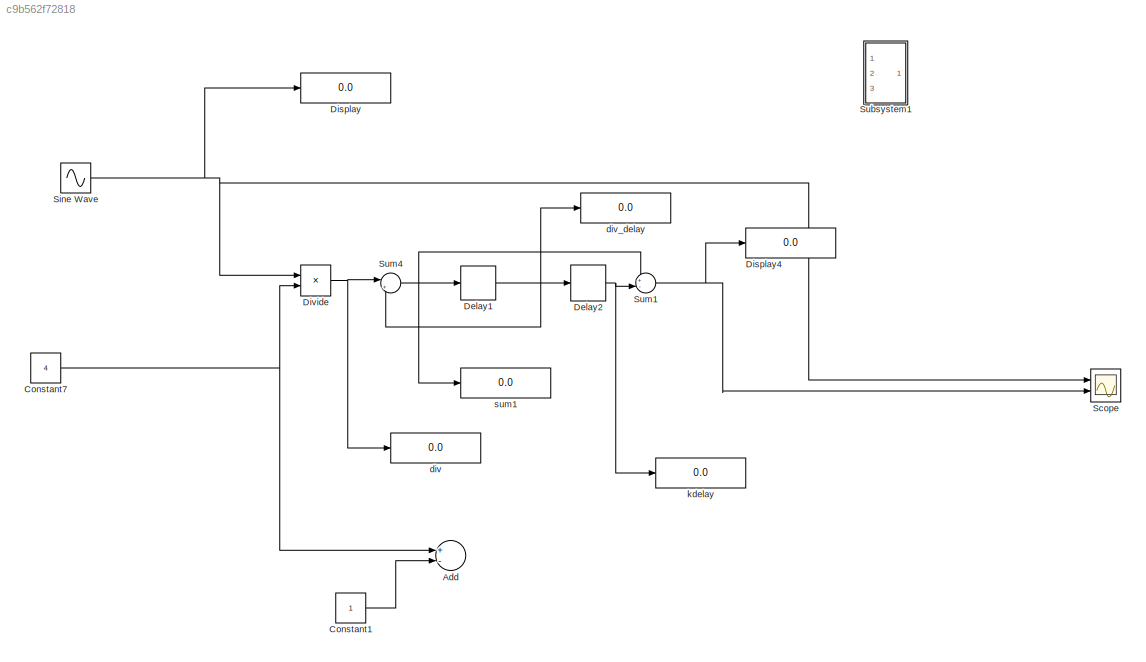
MODEL slx_c9b562f72818
KIND model
BLOCK [Sum] Add
  InputSameDT = off
  Inputs = +-
  OutDataTypeStr = Inherit: Inherit via internal rule
  Ports = [2, 1]
  SaturateOnIntegerOverflow = off
BLOCK [Constant] Constant1
BLOCK [Constant] Constant7
  Value = 4
BLOCK [Delay] Delay1
  DelayLength = 1
  InitialCondition = 0
  InputPortMap = u0
  Ports = [1, 1]
BLOCK [Delay] Delay2
  DelayLength = 3
  InitialCondition = 0
  InputPortMap = u0
  Ports = [1, 1]
BLOCK [Display] Display
  Decimation = 1
  Ports = [1]
BLOCK [Display] Display4
  Decimation = 1
  Ports = [1]
BLOCK [Product] Divide
  InputSameDT = off
  Inputs = */
  OutDataTypeStr = Inherit: Inherit via internal rule
  Ports = [2, 1]
  RndMeth = Floor
  SaturateOnIntegerOverflow = off
BLOCK [Scope] Scope
  Floating = off
  LimitDataPoints = off
  NumInputPorts = 2
  Ports = [2]
  ShowLegends = off
  TimeRange = 0.0001
  YMax = 1~1
  YMin = -1~-1
BLOCK [Sin] Sine Wave
  Frequency = 1E6*2*pi
  Ports = [0, 1]
  SampleTime = 1/250E6
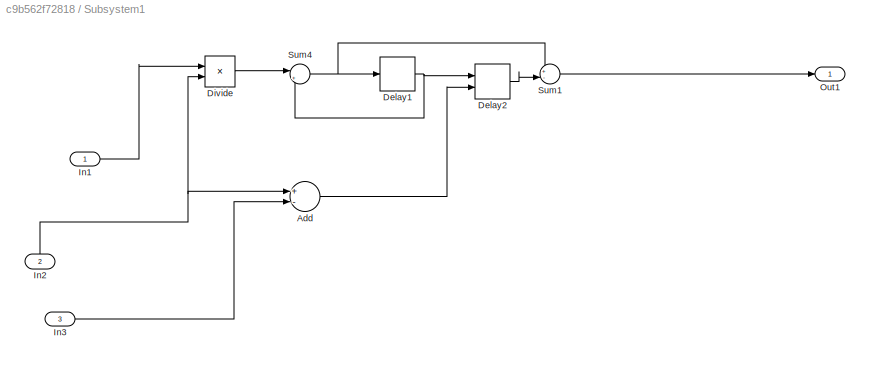
BLOCK [SubSystem] Subsystem1
  Commented = on
  Ports = [3, 1]
  RequestExecContextInheritance = off
BLOCK [Sum] Subsystem1/Add
  InputSameDT = off
  Inputs = +-
  OutDataTypeStr = Inherit: Inherit via internal rule
  Ports = [2, 1]
  SaturateOnIntegerOverflow = off
BLOCK [Delay] Subsystem1/Delay1
  DelayLength = 1
  InitialCondition = 0
  InputPortMap = u0
  Ports = [1, 1]
BLOCK [Delay] Subsystem1/Delay2
  DelayLength = filtk-1
  DelayLengthSource = Input port
  InitialCondition = 0
  InputPortMap = u0,p1
  Ports = [2, 1]
BLOCK [Product] Subsystem1/Divide
  InputSameDT = off
  Inputs = */
  OutDataTypeStr = Inherit: Inherit via internal rule
  Ports = [2, 1]
  RndMeth = Floor
  SaturateOnIntegerOverflow = off
BLOCK [Inport] Subsystem1/In1
  IconDisplay = Port number
BLOCK [Inport] Subsystem1/In2
  IconDisplay = Port number
  Port = 2
BLOCK [Inport] Subsystem1/In3
  IconDisplay = Port number
  Port = 3
BLOCK [Outport] Subsystem1/Out1
  IconDisplay = Port number
BLOCK [Sum] Subsystem1/Sum1
  IconShape = round
  InputSameDT = off
  Inputs = +-|
  OutDataTypeStr = Inherit: Inherit via internal rule
  Ports = [2, 1]
  SaturateOnIntegerOverflow = off
BLOCK [Sum] Subsystem1/Sum4
  IconShape = round
  InputSameDT = off
  Inputs = |++
  OutDataTypeStr = Inherit: Inherit via internal rule
  Ports = [2, 1]
  SaturateOnIntegerOverflow = off
BLOCK [Sum] Sum1
  IconShape = round
  InputSameDT = off
  Inputs = +-|
  OutDataTypeStr = Inherit: Inherit via internal rule
  Ports = [2, 1]
  SaturateOnIntegerOverflow = off
BLOCK [Sum] Sum4
  IconShape = round
  InputSameDT = off
  Inputs = |++
  OutDataTypeStr = Inherit: Inherit via internal rule
  Ports = [2, 1]
  SaturateOnIntegerOverflow = off
BLOCK [Display] div
  Decimation = 1
  Ports = [1]
BLOCK [Display] div_delay
  Decimation = 1
  Ports = [1]
BLOCK [Display] kdelay 
  Decimation = 1
  Ports = [1]
BLOCK [Display] sum1
  Decimation = 1
  Ports = [1]
LINE Constant1:1 -> Add:2
NET Constant7:1 -> Add:1, Divide:2
NET Delay1:1 -> Delay2:1, Sum4:2, div_delay:1
NET Delay2:1 -> Sum1:2, kdelay :1
NET Divide:1 -> Sum4:1, div:1
NET Sine Wave:1 -> Display:1, Divide:1, Scope:1
LINE Subsystem1/Add:1 -> Subsystem1/Delay2:2
NET Subsystem1/Delay1:1 -> Subsystem1/Delay2:1, Subsystem1/Sum4:2
LINE Subsystem1/Delay2:1 -> Subsystem1/Sum1:2
LINE Subsystem1/Divide:1 -> Subsystem1/Sum4:1
LINE Subsystem1/In1:1 -> Subsystem1/Divide:1
NET Subsystem1/In2:1 -> Subsystem1/Add:1, Subsystem1/Divide:2
LINE Subsystem1/In3:1 -> Subsystem1/Add:2
LINE Subsystem1/Sum1:1 -> Subsystem1/Out1:1
NET Subsystem1/Sum4:1 -> Subsystem1/Delay1:1, Subsystem1/Sum1:1
NET Sum1:1 -> Display4:1, Scope:2
NET Sum4:1 -> Delay1:1, Sum1:1, sum1:1
note: NET lines group one-source signal fan-out (src -> all destinations, sorted); 1:1 wires keep LINE
